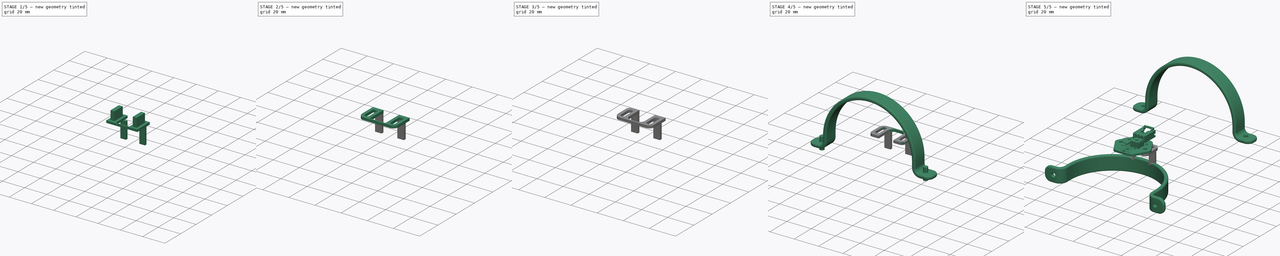
[diagram: build sequence overview — one tinted view per stage of 5, left to right]
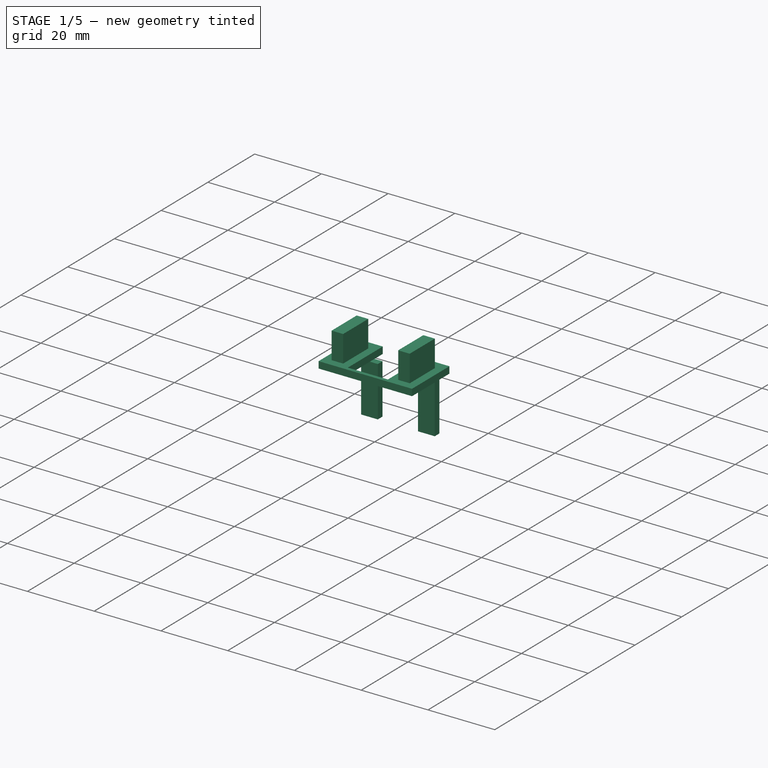
[diagram: stage 1 of 5 — iso view after this stage's code; geometry added in this stage tinted green]
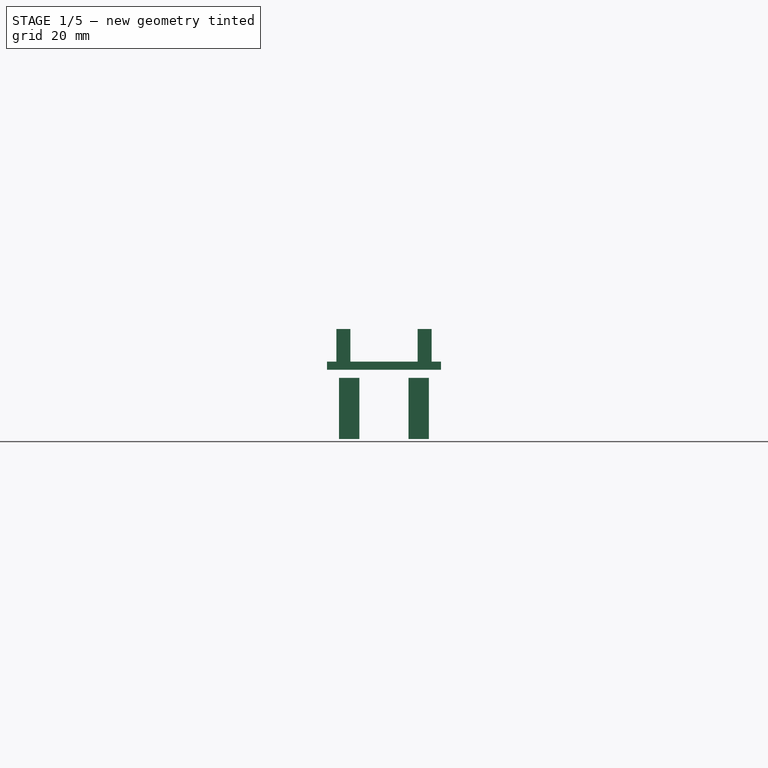
[diagram: stage 1 of 5 — front view after this stage's code; geometry added in this stage tinted green]
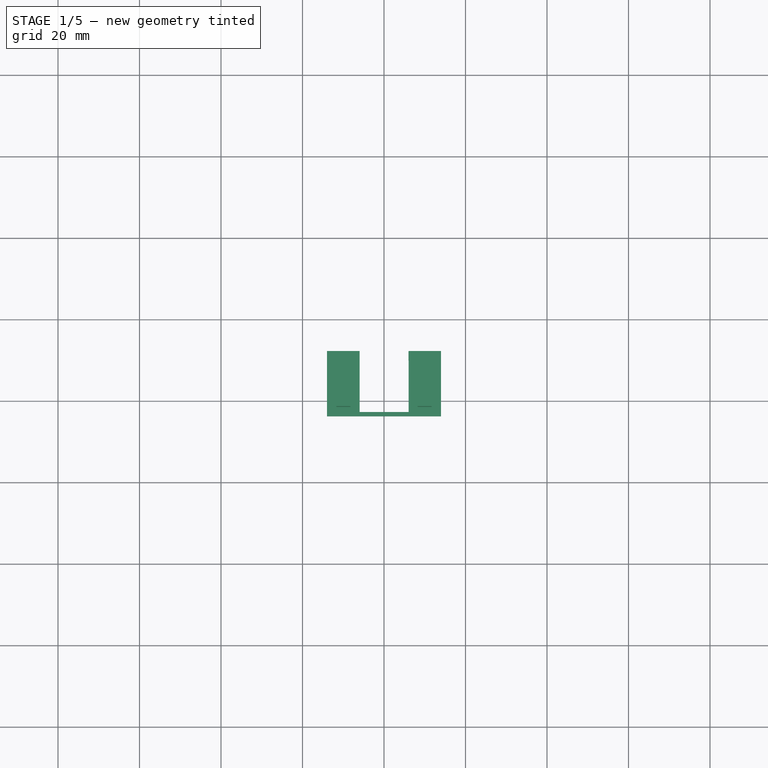
[diagram: stage 1 of 5 — top view after this stage's code; geometry added in this stage tinted green]
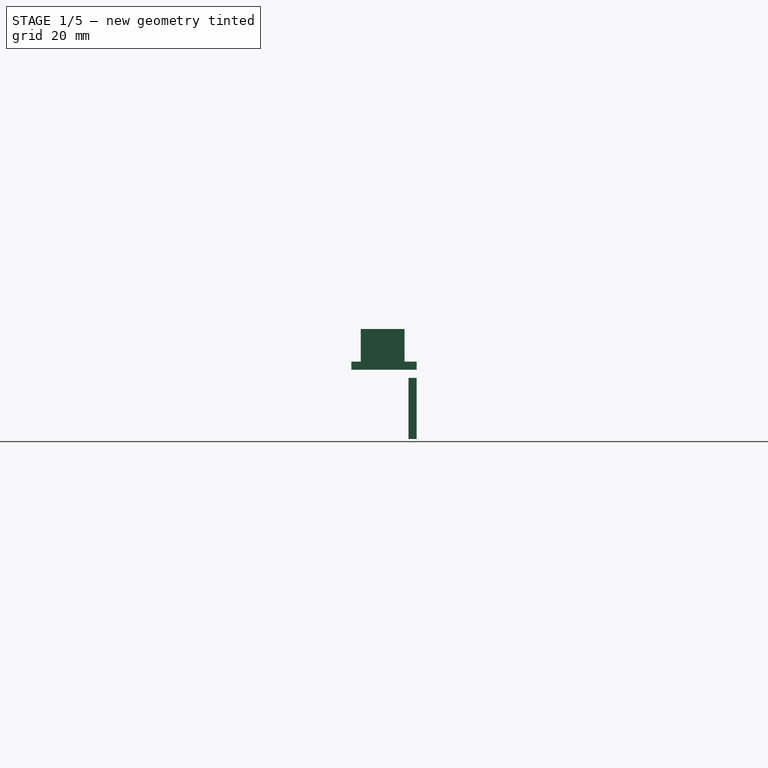
[diagram: stage 1 of 5 — right view after this stage's code; geometry added in this stage tinted green]
FCSTD DOCUMENT  (FreeCAD 0.15R4671 (Git))
Label: guardabarros_ir_adaptador_evolution_up
License: CC-BY 3.0
LicenseURL: http://creativecommons.org/licenses/by/3.0/
objects: Part::Feature×31, Part::Fillet×17, Part::MultiFuse×7, Part::Cut×3, Sketcher::SketchObject×3, PartDesign::Pad×3, Part::Cylinder×2, Part::Box×2, PartDesign::Mirrored×1, App::DocumentObjectGroup×1
note: 72 computed .brp shape members not serialized (recipe doc carries the construction recipe); baked Part::Feature solids carry a one-line shape summary decoded from their .brp

FEATURE [App::DocumentObjectGroup] Group036  label="Guardabarros"
  Group = -> [Cut058]
FEATURE [Part::Feature] Part__Feature  label="R7bqZUM_bloqs_Light"
  Placement = pos=(1.91,-0.3,0) rot=(0,0,1;3.14159rad)
  shape: bbox 1.6 x 0.8 x 0.4 mm, 36 faces (baked)
FEATURE [Part::Feature] Part__Feature001  label="R2bqZUM_bloqs_Light"
  Placement = pos=(-1.59,4.2,0) rot=(0,0,1;3.14159rad)
  shape: bbox 1.6 x 0.8 x 0.4 mm, 36 faces (baked)
FEATURE [Part::Feature] Part__Feature002  label="VRbqZUM_bloqs_Light002"
  Placement = pos=(-3.04408,-0.259919,0) rot=(0,0,-1;1.5708rad)
  shape: bbox 1.028 x 1.028 x 0.89 mm, 5 faces (baked)
FEATURE [Part::Feature] Part__Feature003  label="R6bqZUM_bloqs_Light"
  Placement = pos=(1.91,-1.7,0) rot=(0,0,1;3.14159rad)
  shape: bbox 1.6 x 0.8 x 0.4 mm, 36 faces (baked)
FEATURE [Part::Feature] Part__Feature004  label="LDbqZUM_bloqs_Light001"
  Placement = pos=(-6.16487,-6.8001,0) rot=(0,0,-1;1.5708rad)
  shape: bbox 1 x 0.725 x 0.35 mm, 6 faces (baked)
FEATURE [Part::Feature] Part__Feature005  label="PCB"
  Placement = pos=(0,0,-1.6) rot=(0,0,1;0rad)
  shape: bbox 28.95 x 26.02 x 1.6 mm, 83 faces (baked)
FEATURE [Part::Feature] Part__Feature006  label="D2bqZUM_bloqs_Light"
  Placement = pos=(7.50008,-5.79987,0) rot=(0,0,1;3.14159rad)
  shape: bbox 1.83 x 0.8489 x 0.71 mm, 32 faces (baked)
FEATURE [Part::Feature] Part__Feature007  label="LDbqZUM_bloqs_Light002"
  Placement = pos=(-6.16487,-6.8001,0) rot=(0,0,-1;1.5708rad)
  shape: bbox 0.1601 x 0.1489 x 0.075 mm, 6 faces (baked)
FEATURE [Part::Feature] Part__Feature008  label="R9bqZUM_bloqs_Light"
  Placement = pos=(-6.69,-5.3,0) rot=(0,0,1;3.14159rad)
  shape: bbox 1.6 x 0.8 x 0.4 mm, 36 faces (baked)
FEATURE [Part::Feature] Part__Feature009  label="LDbqZUM_bloqs_Light"
  Placement = pos=(-6.16487,-6.8001,0) rot=(0,0,-1;1.5708rad)
  shape: bbox 1.6 x 0.725 x 0.3 mm, 10 faces (baked)
FEATURE [Part::Feature] Part__Feature010  label="C1bqZUM_bloqs_Light"
  Placement = pos=(3.91,-5.1,0) rot=(0,0,1;3.14159rad)
  shape: bbox 1.6 x 0.8 x 0.6 mm, 44 faces (baked)
FEATURE [Part::Feature] Part__Feature011  label="LDbqZUM_bloqs_Light004"
  Placement = pos=(-6.16487,-6.8001,0) rot=(0,0,-1;1.5708rad)
  shape: bbox 0.275 x 0.65 x 0.35 mm, 14 faces (baked)
FEATURE [Part::Feature] Part__Feature012  label="VRbqZUM_bloqs_Light001"
  Placement = pos=(-3.04408,-0.259919,0) rot=(0,0,-1;1.5708rad)
  shape: bbox 1.028 x 1.028 x 0.89 mm, 5 faces (baked)
FEATURE [Part::Feature] Part__Feature013  label="VRbqZUM_bloqs_Light"
  Placement = pos=(-3.04408,-0.259919,0) rot=(0,0,-1;1.5708rad)
  shape: bbox 1.028 x 1.028 x 0.89 mm, 5 faces (baked)
FEATURE [Part::Feature] Part__Feature014  label="VRbqZUM_bloqs_Light004"
  Placement = pos=(-3.04408,-0.259919,0) rot=(0,0,-1;1.5708rad)
  shape: bbox 0.46 x 0.46 x 5.8 mm, 4 faces (baked)
FEATURE [Part::Feature] Part__Feature015  label="C2bqZUM_bloqs_Light"
  Placement = pos=(-4.21,4.2,0) rot=(0,0,1;0rad)
  shape: bbox 1.6 x 0.8 x 0.6 mm, 44 faces (baked)
FEATURE [Part::Feature] Part__Feature016  label="C3bqZUM_bloqs_Light"
  Placement = pos=(1.91,1.1,0) rot=(0,0,1;3.14159rad)
  shape: bbox 1.6 x 0.8 x 0.6 mm, 44 faces (baked)
FEATURE [Part::Feature] Part__Feature017  label="U2bqZUM_bloqs_Light"
  Placement = pos=(5.10492,-0.244957,0) rot=(0.57735,0.57735,0.57735;2.0944rad)
  shape: bbox 3 x 6.456 x 1.2 mm, 129 faces (baked)
FEATURE [Part::Feature] Part__Feature018  label="VRbqZUM_bloqs_Light007"
  Placement = pos=(-3.04408,-0.259919,0) rot=(0,0,-1;1.5708rad)
  shape: bbox 7.054 x 6.6 x 4.7 mm, 177 faces (baked)
FEATURE [Part::Feature] Part__Feature019  label="LDbqZUM_bloqs_Light003"
  Placement = pos=(-6.16487,-6.8001,0) rot=(0,0,-1;1.5708rad)
  shape: bbox 0.275 x 0.65 x 0.35 mm, 14 faces (baked)
FEATURE [Part::Feature] Part__Feature020  label="RfbbqZUM_bloqs_Light"
  Placement = pos=(7.49,-7.22,0) rot=(0,0,1;0rad)
  shape: bbox 1.6 x 0.8 x 0.4 mm, 36 faces (baked)
FEATURE [Part::Feature] Part__Feature021  label="VRbqZUM_bloqs_Light006"
  Placement = pos=(-3.04408,-0.259919,0) rot=(0,0,-1;1.5708rad)
  shape: bbox 0.46 x 0.46 x 5.8 mm, 4 faces (baked)
FEATURE [Part::Feature] Part__Feature022  label="C4bqZUM_bloqs_Light"
  Placement = pos=(6.21,4.2,0) rot=(0,0,1;3.14159rad)
  shape: bbox 1.6 x 0.8 x 0.6 mm, 44 faces (baked)
FEATURE [Part::Feature] Part__Feature023  label="VRbqZUM_bloqs_Light003"
  Placement = pos=(-3.04408,-0.259919,0) rot=(0,0,-1;1.5708rad)
  shape: bbox 1.028 x 1.028 x 0.89 mm, 5 faces (baked)
FEATURE [Part::Feature] Part__Feature024  label="VRbqZUM_bloqs_Light005"
  Placement = pos=(-3.04408,-0.259919,0) rot=(0,0,-1;1.5708rad)
  shape: bbox 0.46 x 0.46 x 5.8 mm, 4 faces (baked)
FEATURE [Part::Feature] Part__Feature025  label="R5bqZUM_bloqs_Light"
  Placement = pos=(1.01,4.2,0) rot=(0,0,1;3.14159rad)
  shape: bbox 1.6 x 0.8 x 0.4 mm, 36 faces (baked)
FEATURE [Part::Feature] Part__Feature026  label="J1bqZUM_bloqs_Light"
  Placement = pos=(-4.08502e-05,-19.573,2.98) rot=(1,0,0;1.5708rad)
  shape: bbox 10.16 x 13.59 x 10.29 mm, 129 faces (baked)
FEATURE [Part::Feature] Part__Feature027  label="R1bqZUM_bloqs_Light"
  Placement = pos=(3.61,4.2,0) rot=(0,0,1;3.14159rad)
  shape: bbox 1.6 x 0.8 x 0.4 mm, 36 faces (baked)
FEATURE [Sketcher::SketchObject] Sketch  label="shape"
  sketch-geometry (8):
    g0: LineSegment StartX=-14 StartY=12 StartZ=0 EndX=-14 EndY=-4 EndZ=0
    g1: LineSegment StartX=-14 StartY=-4 StartZ=0 EndX=14 EndY=-4 EndZ=0
    g2: LineSegment StartX=14 StartY=-4 StartZ=0 EndX=14 EndY=12 EndZ=0
    g3: LineSegment StartX=14 StartY=12 StartZ=0 EndX=6.03299 EndY=12 EndZ=0
    g4: LineSegment StartX=6.03299 StartY=12 StartZ=0 EndX=6.03299 EndY=-2.9646 EndZ=0
    g5: LineSegment StartX=6.03299 StartY=-2.9646 StartZ=0 EndX=-5.96701 EndY=-2.9646 EndZ=0
    g6: LineSegment StartX=-5.96701 StartY=-2.9646 StartZ=0 EndX=-5.96701 EndY=12 EndZ=0
    g7: LineSegment StartX=-5.96701 StartY=12 StartZ=0 EndX=-14 EndY=12 EndZ=0
  constraints (17):
    c: Vertical(g0)
    c: Coincident(g0,g1)
    c: Horizontal(g1)
    c: Coincident(g1,g2)
    c: Vertical(g2)
    c: Coincident(g2,g3)
    c: Horizontal(g3)
    c: Coincident(g3,g4)
    c: Vertical(g4)
    c: Coincident(g4,g5)
    c: Horizontal(g5)
    c: Coincident(g5,g6)
    c: Vertical(g6)
    c: Coincident(g6,g7)
    c: Coincident(g7,g0)
    c: Horizontal(g7)
    c: DistanceY(g6,g3) = 0
FEATURE [PartDesign::Pad] Pad  label="adaptor_shape"
  Length = 2
  Length2 = 100
  Sketch = -> Sketch
  Type = 0
FEATURE [Sketcher::SketchObject] Sketch001  label="slide_screw"
  sketch-geometry (4):
    g0: LineSegment StartX=-11.7018 StartY=9.02997 StartZ=0 EndX=-11.7018 EndY=-1.69219 EndZ=0
    g1: LineSegment StartX=-11.7018 StartY=-1.69219 StartZ=0 EndX=-8.25 EndY=-1.69219 EndZ=0
    g2: LineSegment StartX=-8.25 StartY=-1.69219 StartZ=0 EndX=-8.25 EndY=9.02997 EndZ=0
    g3: LineSegment StartX=-8.25 StartY=9.02997 StartZ=0 EndX=-11.7018 EndY=9.02997 EndZ=0
  constraints (8):
    c: Vertical(g0)
    c: Horizontal(g1)
    c: Vertical(g2)
    c: Coincident(g3,g0)
    c: Horizontal(g3)
    c: Coincident(g0,g1)
    c: Coincident(g1,g2)
    c: Coincident(g2,g3)
FEATURE [Sketcher::SketchObject] Sketch002  label="slide_screw001"
  Placement = pos=(20,0,0) rot=(0,0,1;0rad)
  sketch-geometry (4):
    g0: LineSegment StartX=-11.7606 StartY=9.04638 StartZ=0 EndX=-11.7606 EndY=-1.69219 EndZ=0
    g1: LineSegment StartX=-11.7606 StartY=-1.69219 StartZ=0 EndX=-8.30881 EndY=-1.69219 EndZ=0
    g2: LineSegment StartX=-8.30881 StartY=-1.69219 StartZ=0 EndX=-8.30881 EndY=9.04638 EndZ=0
    g3: LineSegment StartX=-8.30881 StartY=9.04638 StartZ=0 EndX=-11.7606 EndY=9.04638 EndZ=0
  constraints (8):
    c: Vertical(g0)
    c: Horizontal(g1)
    c: Vertical(g2)
    c: Coincident(g3,g0)
    c: Horizontal(g3)
    c: Coincident(g0,g1)
    c: Coincident(g1,g2)
    c: Coincident(g2,g3)
FEATURE [PartDesign::Pad] Pad001
  Length = 10
  Length2 = 100
  Sketch = -> Sketch001
  Type = 0
FEATURE [PartDesign::Pad] Pad002
  Length = 10
  Length2 = 100
  Placement = pos=(20,0,0) rot=(0,0,1;0rad)
  Sketch = -> Sketch002
  Type = 0
FEATURE [Part::MultiFuse] Fusion057
  Shapes = -> [Pad001,Pad002]
FEATURE [Part::Box] Box  label="Cubo"
  Height = 15
  Length = 5
  Placement = pos=(6,10,-17) rot=(0,0,1;0rad)
  Width = 2
FEATURE [Part::Box] Box001  label="Cubo001"
  Height = 15
  Length = 5
  Placement = pos=(-11.05,10,-17) rot=(0,0,1;0rad)
  Width = 2
FEATURE [Part::MultiFuse] Fusion058
  Shapes = -> [Box001,Box]
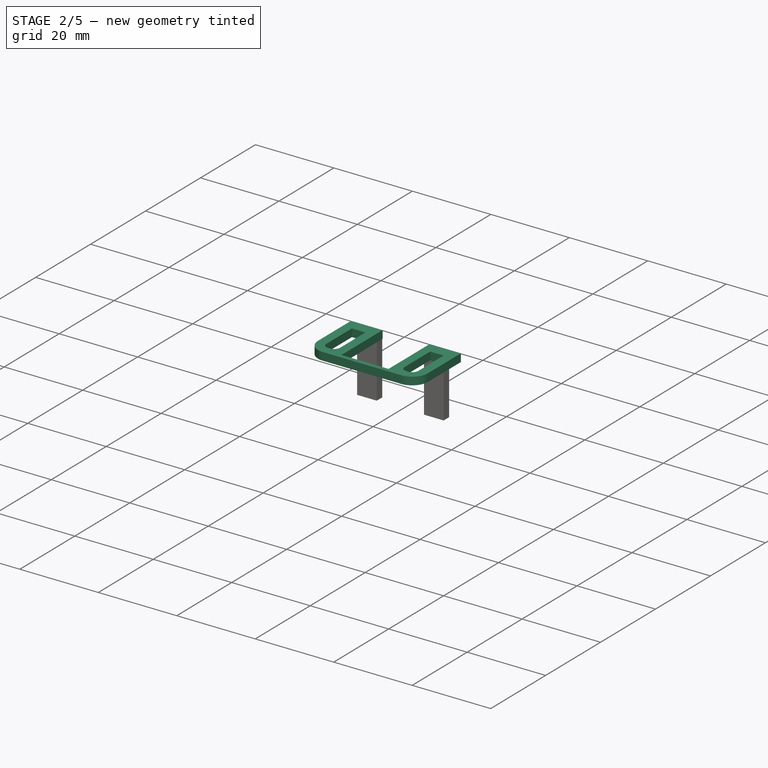
[diagram: stage 2 of 5 — iso view after this stage's code; geometry added in this stage tinted green]
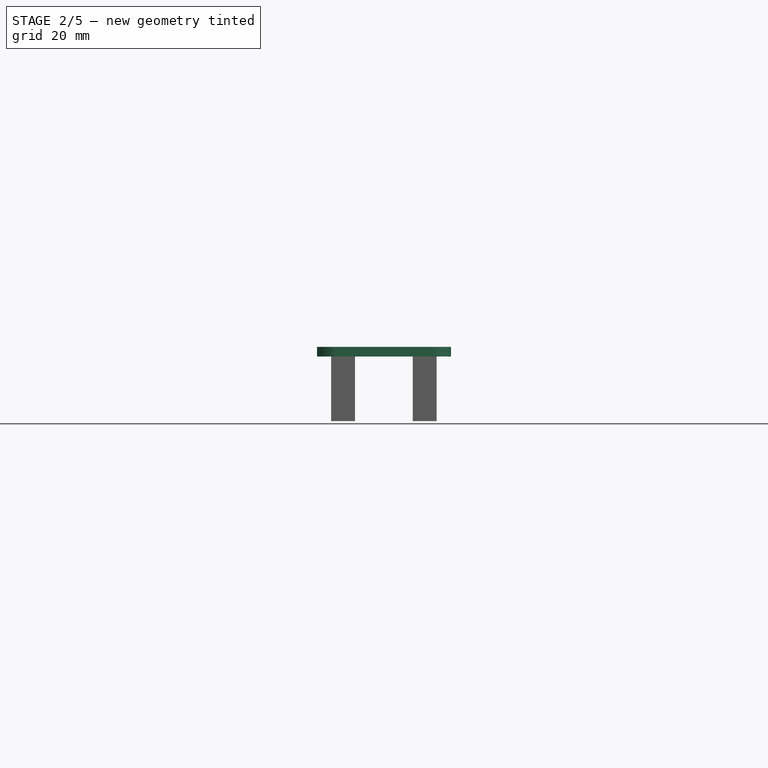
[diagram: stage 2 of 5 — front view after this stage's code; geometry added in this stage tinted green]
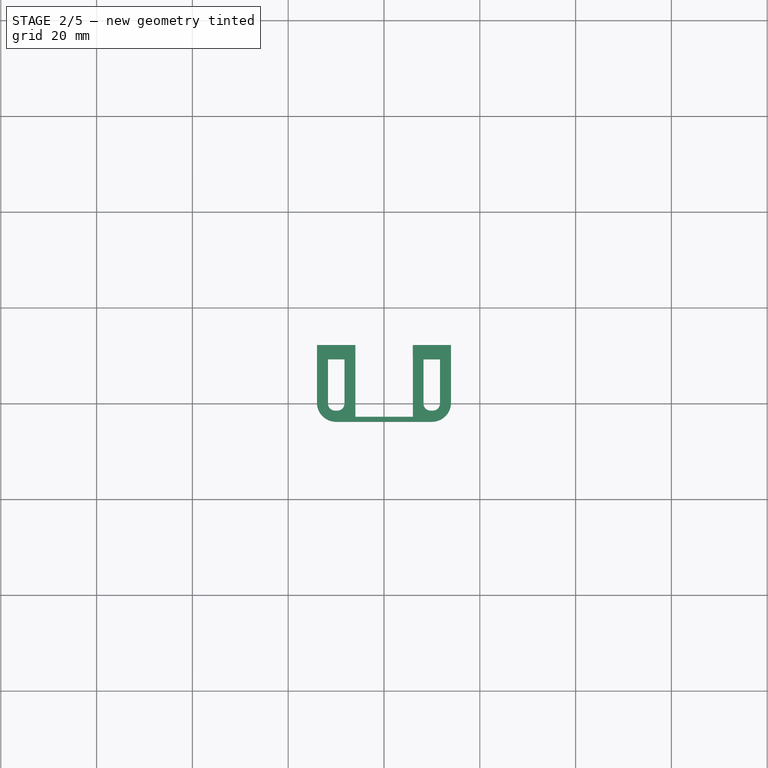
[diagram: stage 2 of 5 — top view after this stage's code; geometry added in this stage tinted green]
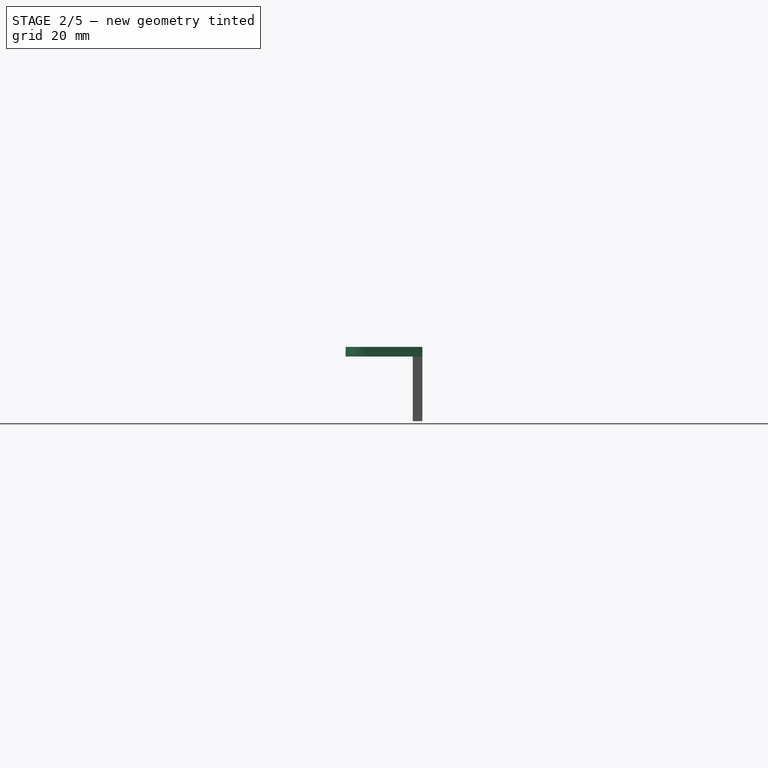
[diagram: stage 2 of 5 — right view after this stage's code; geometry added in this stage tinted green]
FEATURE [Part::Cut] Cut
  Base = -> Pad
  Tool = -> Fusion057
FEATURE [Part::Fillet] Fillet
  Base = -> Cut
  Edges = 1 edges r=4: [Edge2]
FEATURE [Part::Fillet] Fillet035  label="ir_adapter"
  Base = -> Fillet
  Edges = 1 edges r=4: [Edge39]
  Placement = pos=(0,0,-3.5) rot=(0,0,1;0rad)
FEATURE [Part::Fillet] Fillet036
  Base = -> Fillet035
  Edges = 1 edges r=1.5: [Edge47]
FEATURE [Part::Fillet] Fillet037
  Base = -> Fillet036
  Edges = 1 edges r=1.5: [Edge27]
FEATURE [Part::Fillet] Fillet038
  Base = -> Fillet037
  Edges = 1 edges r=1.5: [Edge57]
FEATURE [Part::Fillet] Fillet039
  Base = -> Fillet038
  Edges = 1 edges r=1.5: [Edge23]
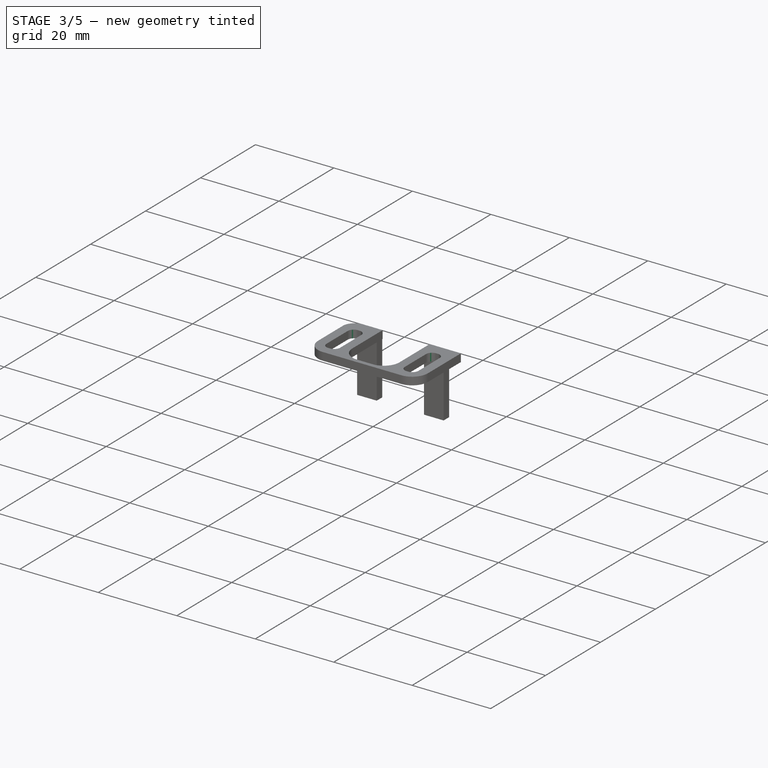
[diagram: stage 3 of 5 — iso view after this stage's code; geometry added in this stage tinted green]
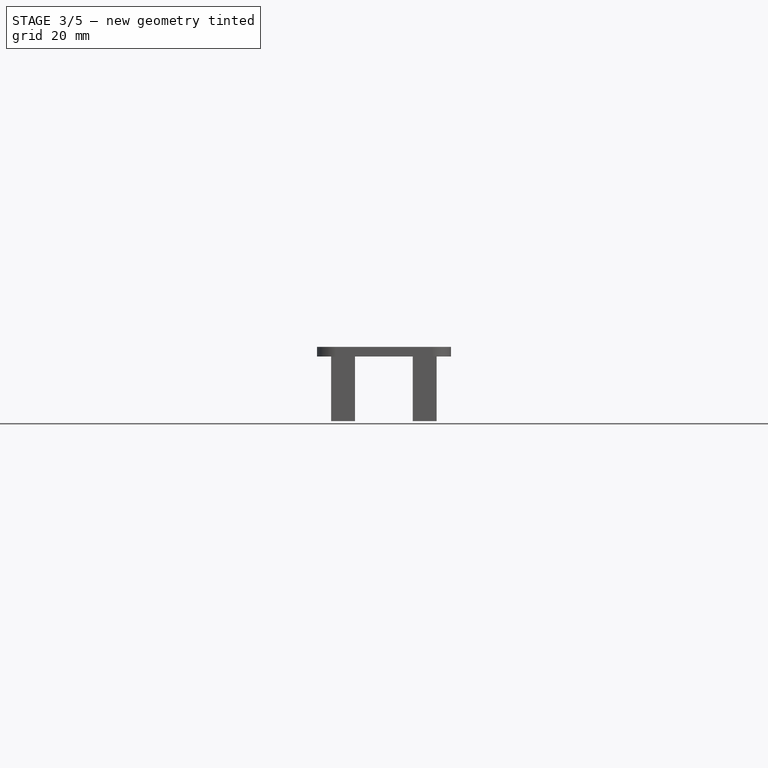
[diagram: stage 3 of 5 — front view after this stage's code; geometry added in this stage tinted green]
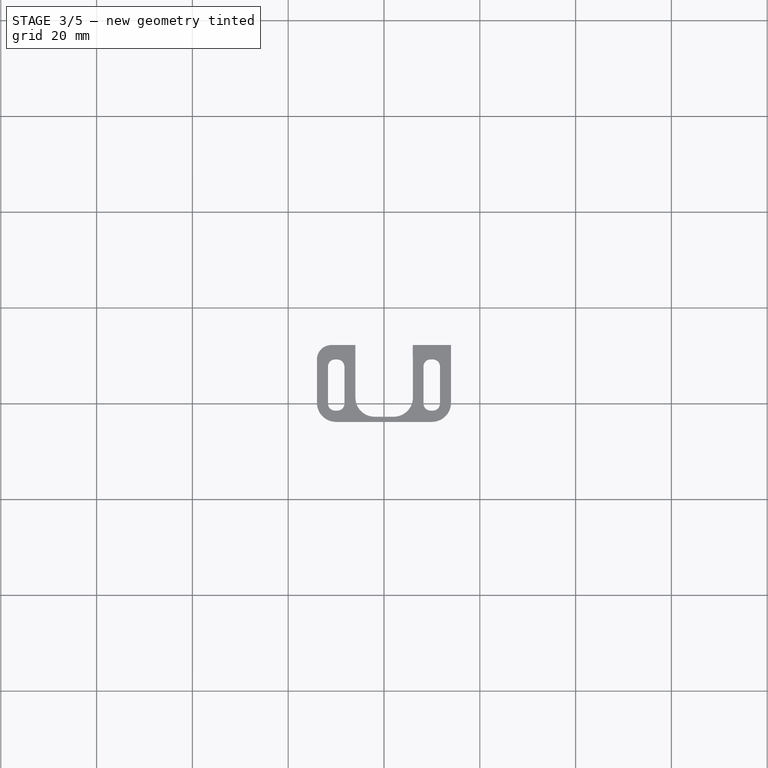
[diagram: stage 3 of 5 — top view after this stage's code; geometry added in this stage tinted green]
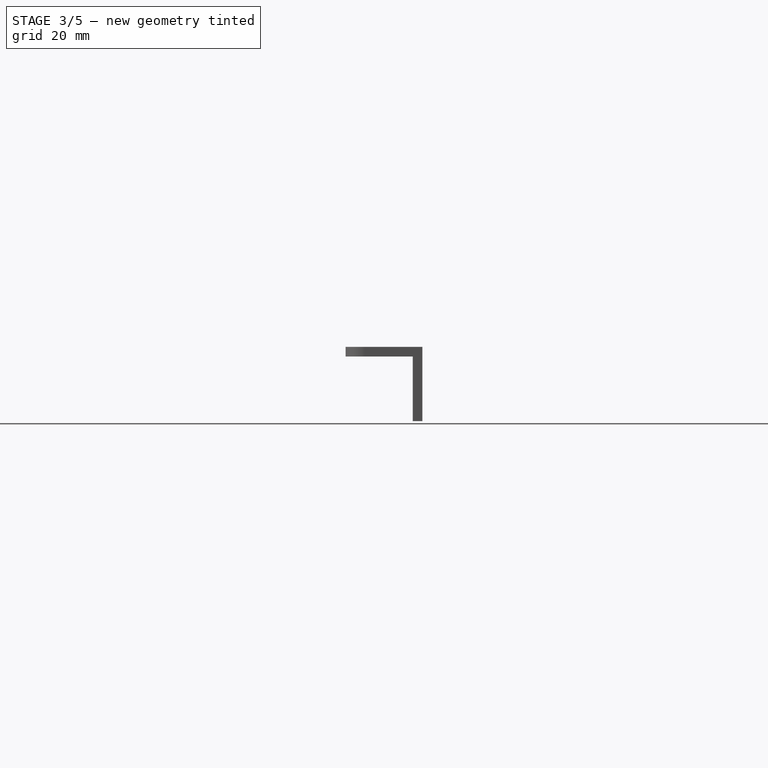
[diagram: stage 3 of 5 — right view after this stage's code; geometry added in this stage tinted green]
FEATURE [Part::Fillet] Fillet040
  Base = -> Fillet039
  Edges = 1 edges r=1.5: [Edge42]
FEATURE [Part::Fillet] Fillet041
  Base = -> Fillet040
  Edges = 1 edges r=1.5: [Edge45]
FEATURE [Part::Fillet] Fillet042
  Base = -> Fillet041
  Edges = 1 edges r=1.5: [Edge46]
FEATURE [Part::Fillet] Fillet043
  Base = -> Fillet042
  Edges = 1 edges r=1.5: [Edge49]
FEATURE [Part::Fillet] Fillet044
  Base = -> Fillet043
  Edges = 1 edges r=4: [Edge76]
FEATURE [Part::Fillet] Fillet045  label="ir_adaptor"
  Base = -> Fillet044
  Edges = 1 edges r=4: [Edge35]
FEATURE [Part::Fillet] Fillet046
  Base = -> Fillet045
  Edges = 1 edges r=3: [Edge42]
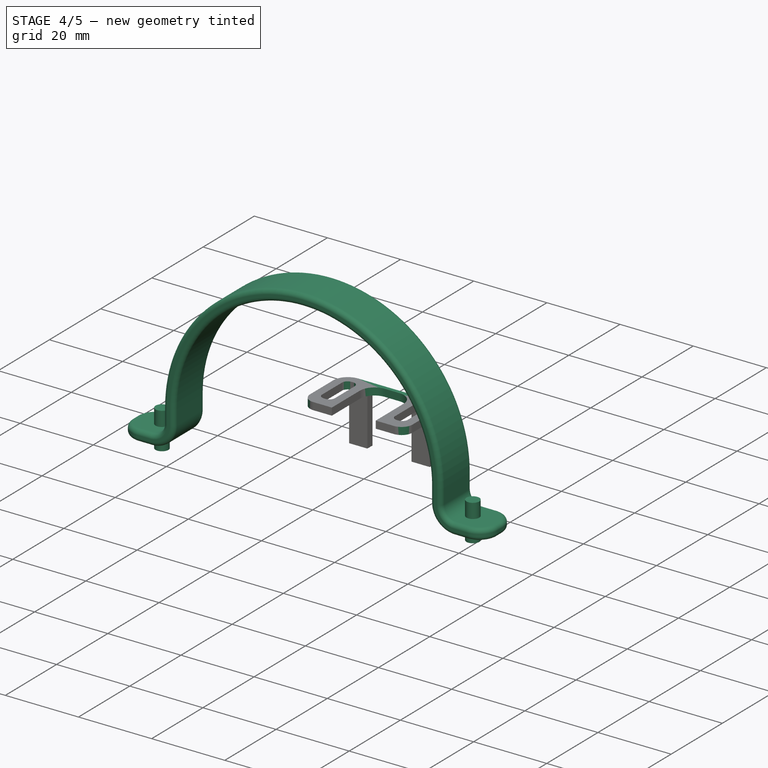
[diagram: stage 4 of 5 — iso view after this stage's code; geometry added in this stage tinted green]
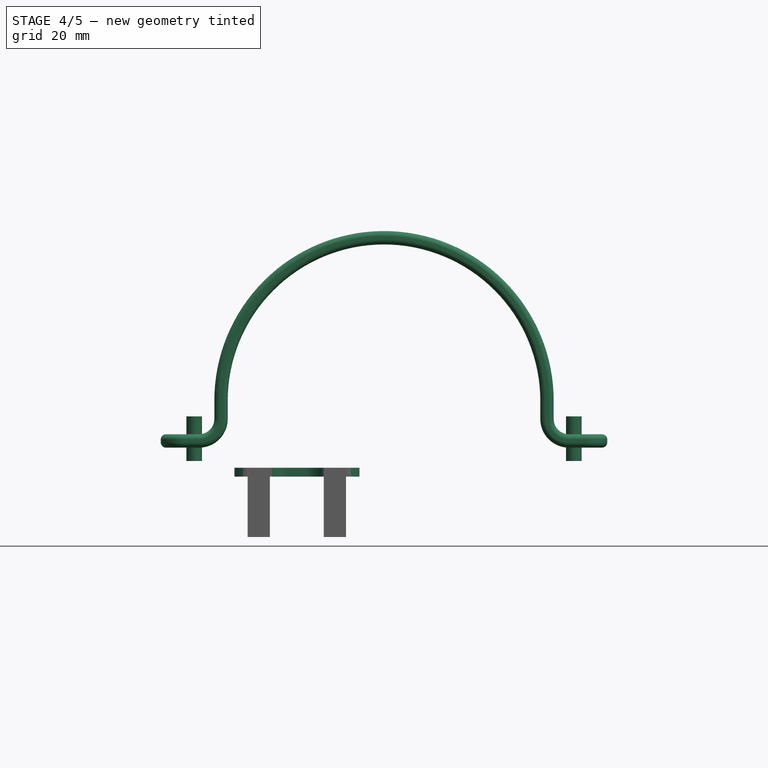
[diagram: stage 4 of 5 — front view after this stage's code; geometry added in this stage tinted green]
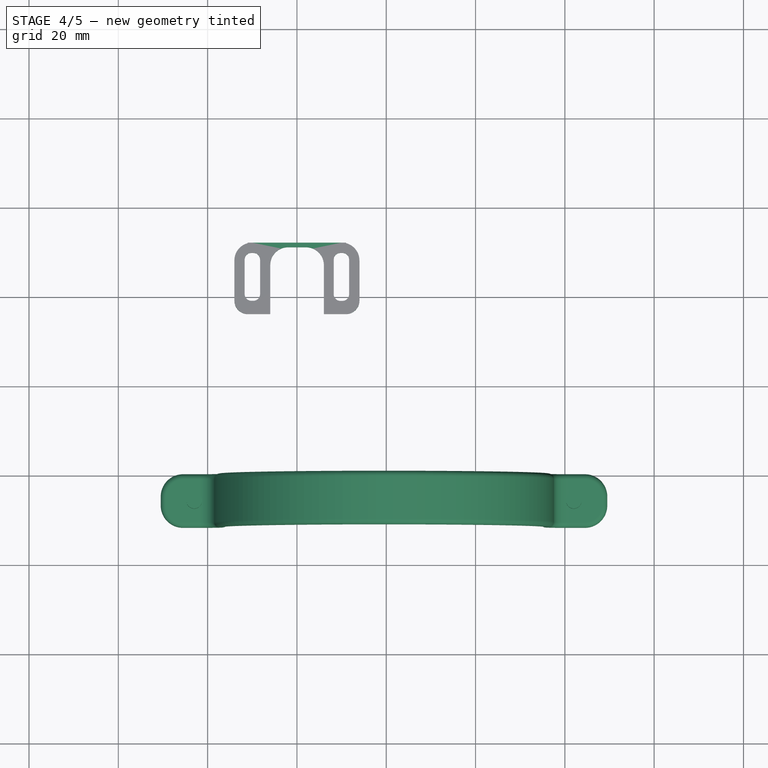
[diagram: stage 4 of 5 — top view after this stage's code; geometry added in this stage tinted green]
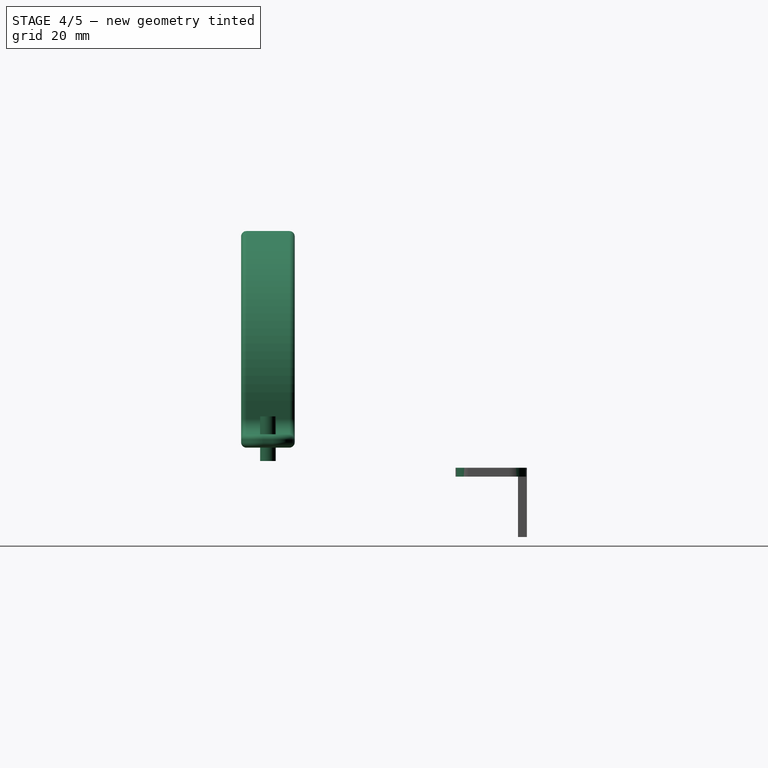
[diagram: stage 4 of 5 — right view after this stage's code; geometry added in this stage tinted green]
FEATURE [Part::Cylinder] Cylinder049  label="Taladro-Guardabarros_2"
  Angle = 360
  Height = 10
  Placement = pos=(-23,-46,0) rot=(0,0,1;0rad)
  Radius = 1.75
FEATURE [Part::Cylinder] Cylinder050  label="Taladro_Guardabarros_1"
  Angle = 360
  Height = 10
  Placement = pos=(62,-46,0) rot=(0,0,1;0rad)
  Radius = 1.75
FEATURE [PartDesign::Mirrored] Mirrored
  Placement = pos=(0,-40,0) rot=(1,0,0;1.5708rad)
FEATURE [Part::Fillet] Fillet032
  Base = -> Mirrored
  Edges = 4 edges r=5: [Edge12,Edge13,Edge30,Edge42]
FEATURE [Part::Fillet] Fillet033
  Base = -> Fillet032
  Edges = 2 edges r=1.2: [Edge30,Edge35]
FEATURE [Part::Fillet] Fillet047  label="ir_adapter001"
  Base = -> Fillet046
  Edges = 1 edges r=3: [Edge53]
  Placement = pos=(0,8,-5) rot=(1,0,0;3.14159rad)
FEATURE [Part::MultiFuse] Fusion059  label="adaptadpr_ir"
  Shapes = -> [Fillet047,Fusion058]
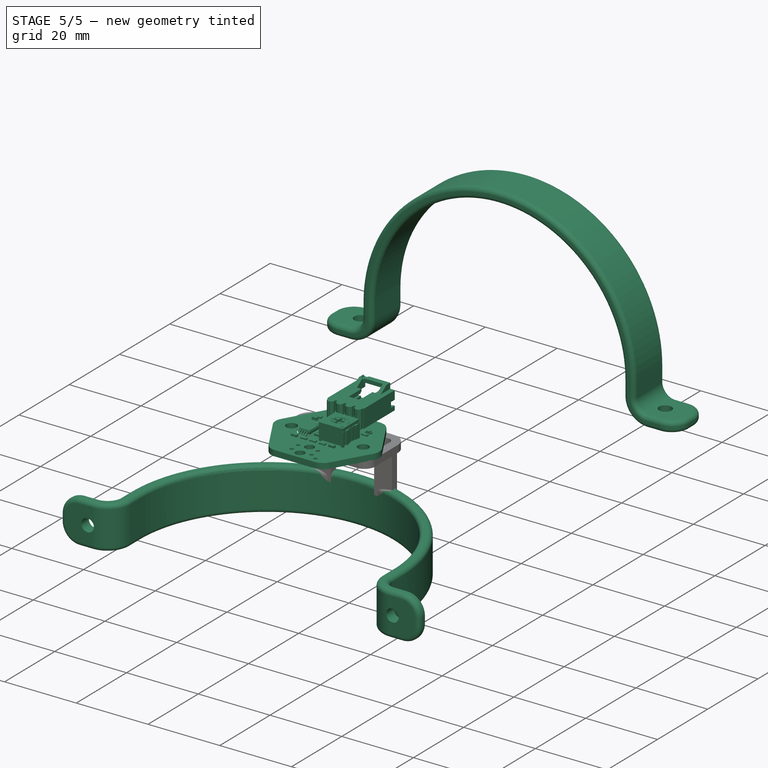
[diagram: stage 5 of 5 — iso view after this stage's code; geometry added in this stage tinted green]
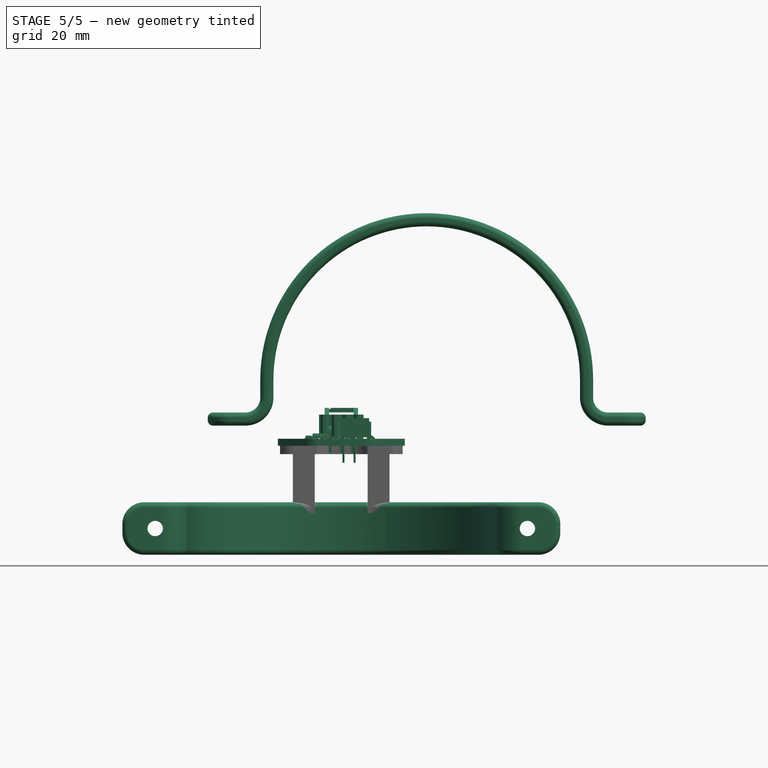
[diagram: stage 5 of 5 — front view after this stage's code; geometry added in this stage tinted green]
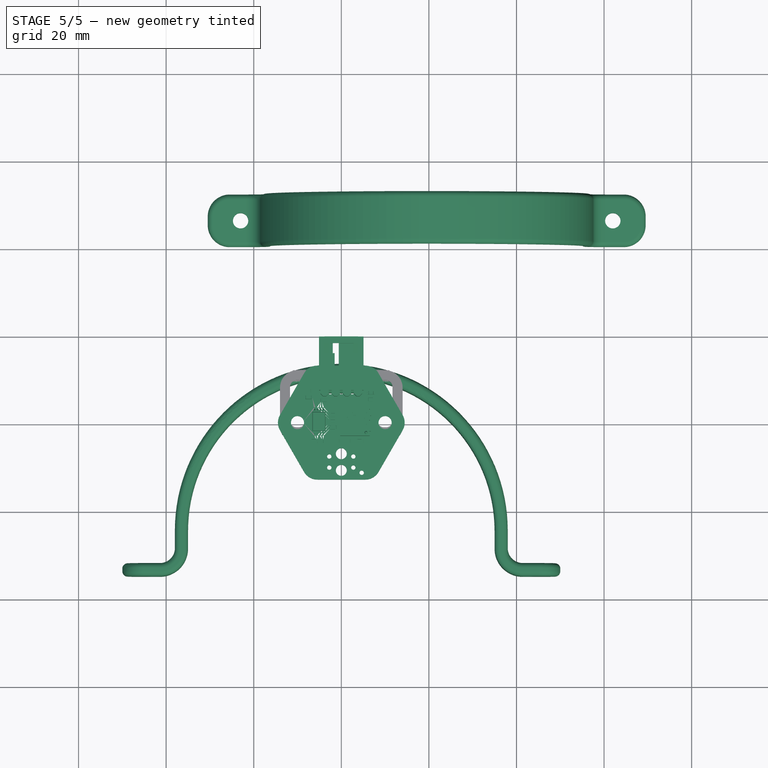
[diagram: stage 5 of 5 — top view after this stage's code; geometry added in this stage tinted green]
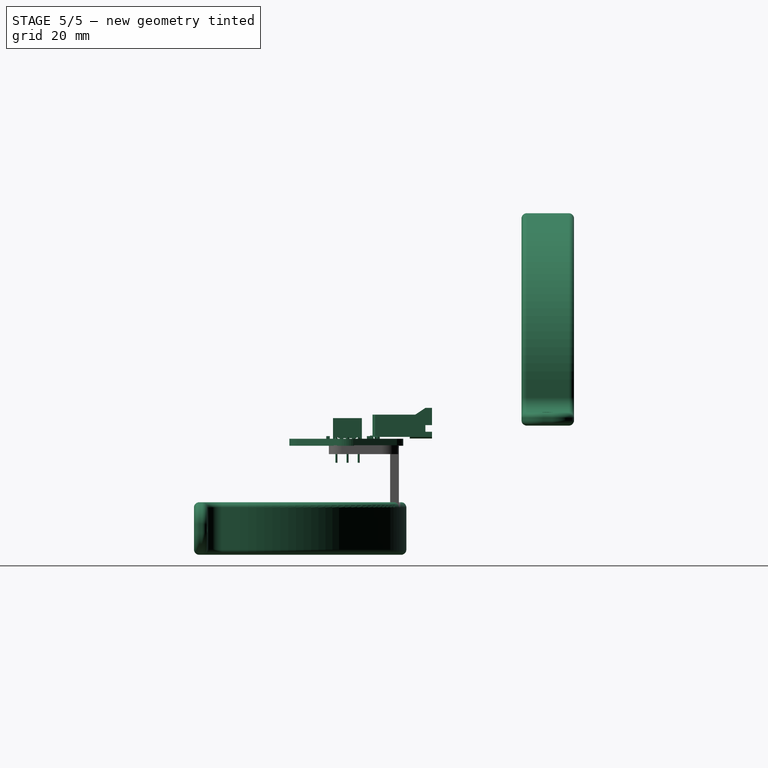
[diagram: stage 5 of 5 — right view after this stage's code; geometry added in this stage tinted green]
FEATURE [Part::MultiFuse] Fusion051  label="Taladros_Guardabarros"
  Shapes = -> [Cylinder050,Cylinder049]
FEATURE [Part::Cut] Cut057  label="GUARDABARROS_FINAL"
  Base = -> Fillet033
  Placement = pos=(-19.5,-37.8,-66.5) rot=(-1,0,0;1.5708rad)
  Tool = -> Fusion051
FEATURE [Part::MultiFuse] Fusion056  label="Taladros_Guardabarros001"
  Shapes = -> [Cylinder050,Cylinder049]
FEATURE [Part::Fillet] Fillet034
  Base = -> Fillet032
  Edges = 2 edges r=1.2: [Edge30,Edge35]
FEATURE [Part::Cut] Cut058  label="GUARDABARROS_FINAL2"
  Base = -> Fillet034
  Placement = pos=(0,92,0) rot=(0,0,1;0rad)
  Tool = -> Fusion056
FEATURE [Part::MultiFuse] Fusion  label="Sensor_IR_1"
  Placement = pos=(0,0,0) rot=(0,0,1;3.14159rad)
  Shapes = -> [Part__Feature017,Part__Feature007,Part__Feature005,Part__Feature022,Part__Feature003,Part__Feature024,Part__Feature014,Part__Feature009,Part__Feature006,Part__Feature027,Part__Feature019,Part__Feature001,Part__Feature016,Part__Feature020,Part__Feature008,Part__Feature010,Part__Feature004,Part__Feature,Part__Feature012,Part__Feature002,Part__Feature021,Part__Feature013,Part__Feature023,+5 more]
FEATURE [Part::MultiFuse] Fusion060  label="guardabarros_adaptador_ir"
  Shapes = -> [Cut057,Fusion059]
FEATURE [Part::Feature] Fusion061  label="guardabarros_adaptador_ir001"
  shape: bbox 100.8 x 52.16 x 20.41 mm, 118 faces (baked)
FEATURE [Part::Feature] Fusion060001  label="guardabarros_adaptador_ir002"
  shape: bbox 100.8 x 52.16 x 25.41 mm, 114 faces (baked)
FEATURE [Part::Feature] Fusion060001_solid  label="guardabarros_11_adaptador_IR_UP"
  shape: bbox 100.8 x 52.16 x 25.41 mm, 114 faces (baked)
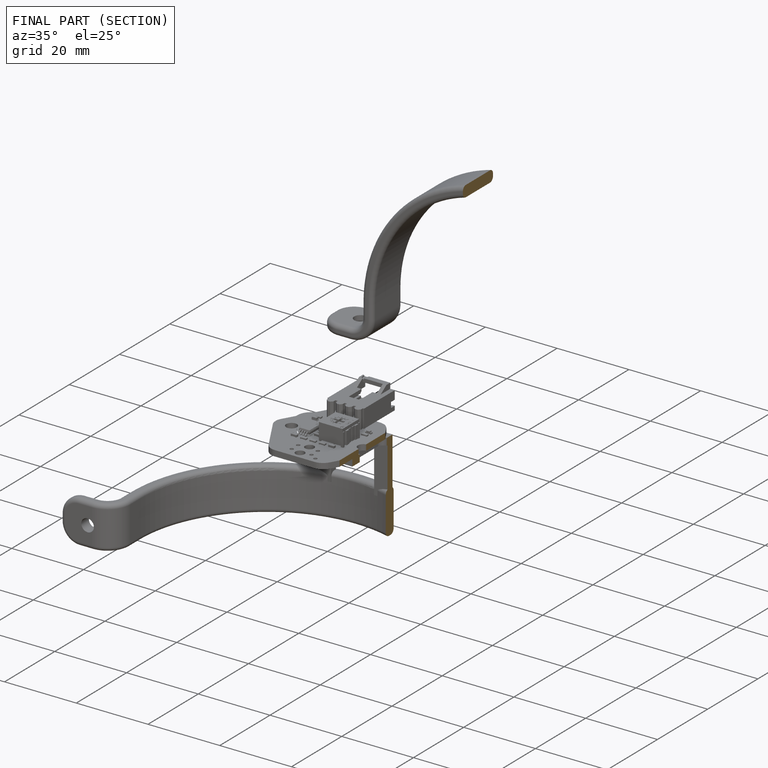
[diagram: finished part — half-section view (interior)]
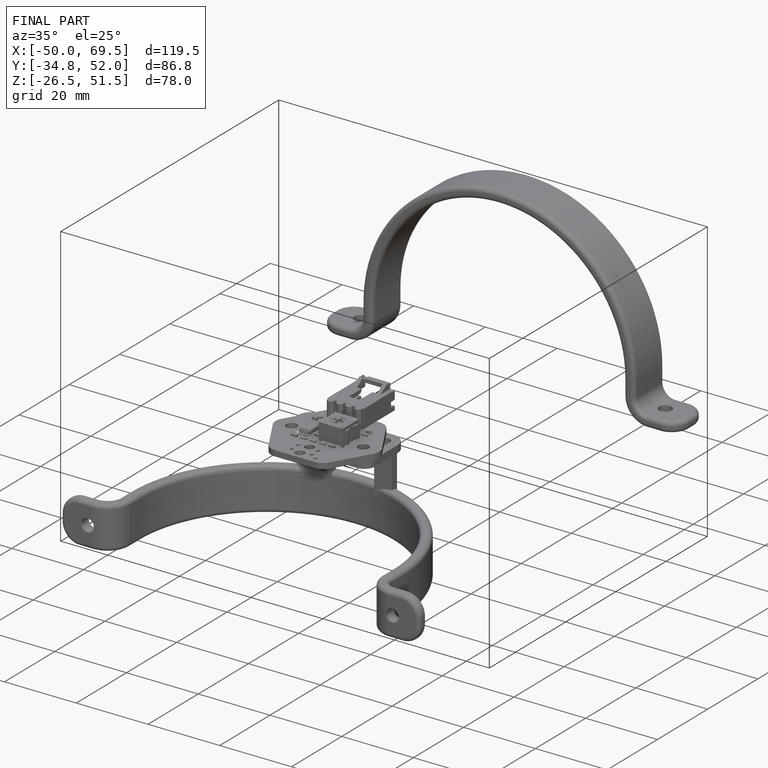
[diagram: finished part — iso view with bounding-box wireframe]
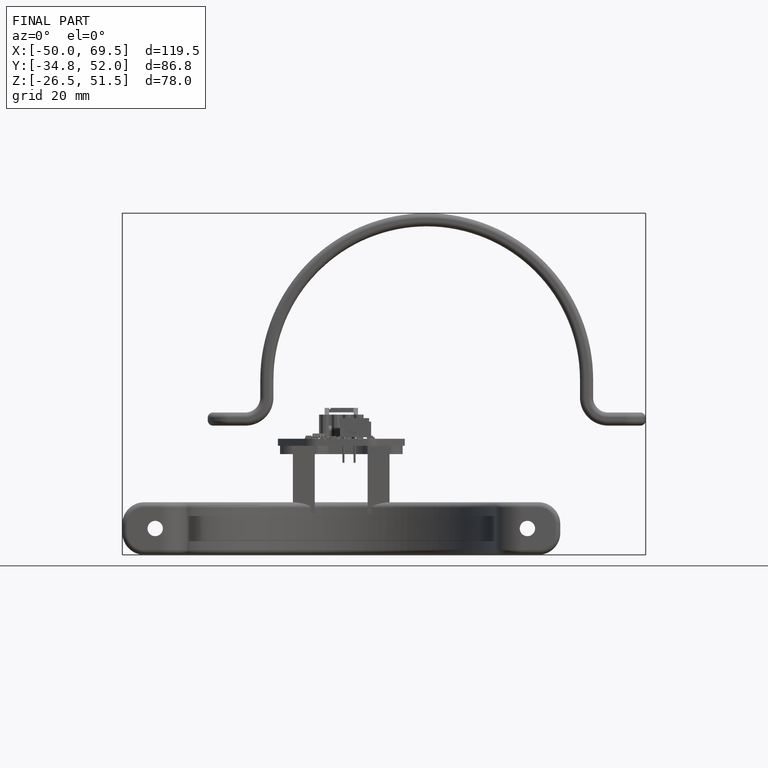
[diagram: finished part — front view with bounding-box wireframe]
